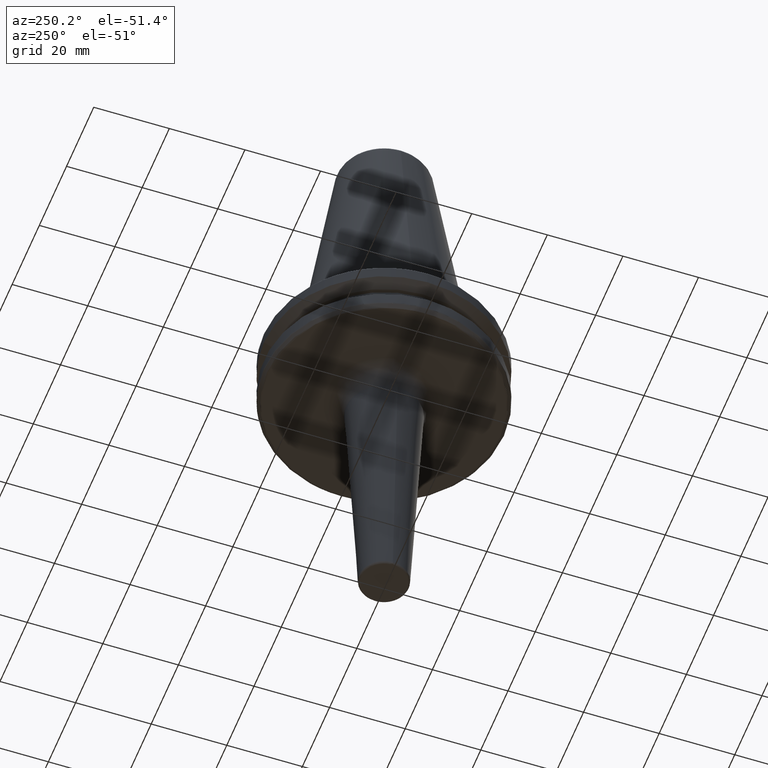
[diagram: clean part render]
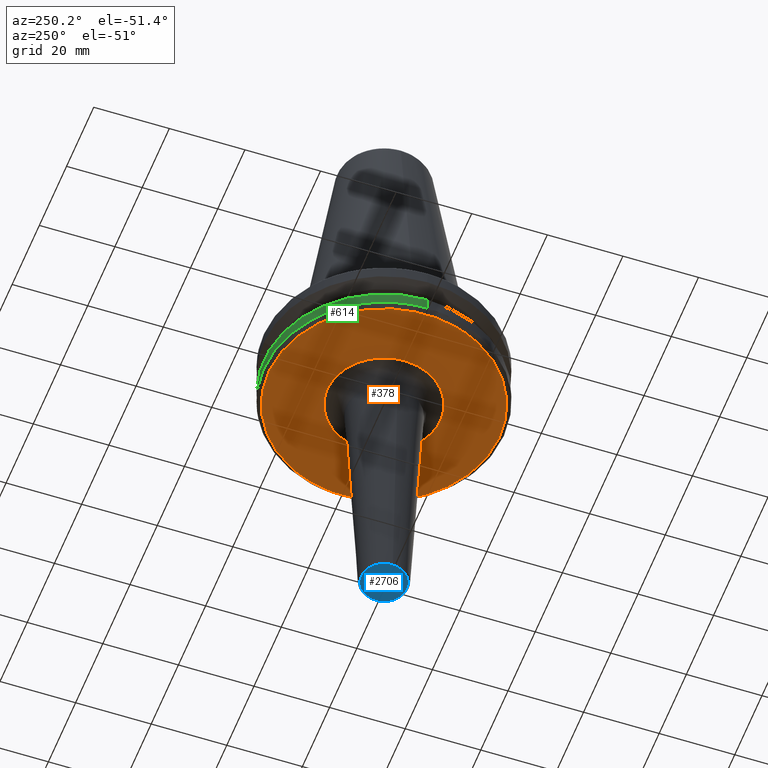
[diagram: same view with three faces highlighted in distinct colors, each labeled with its STEP entity id]
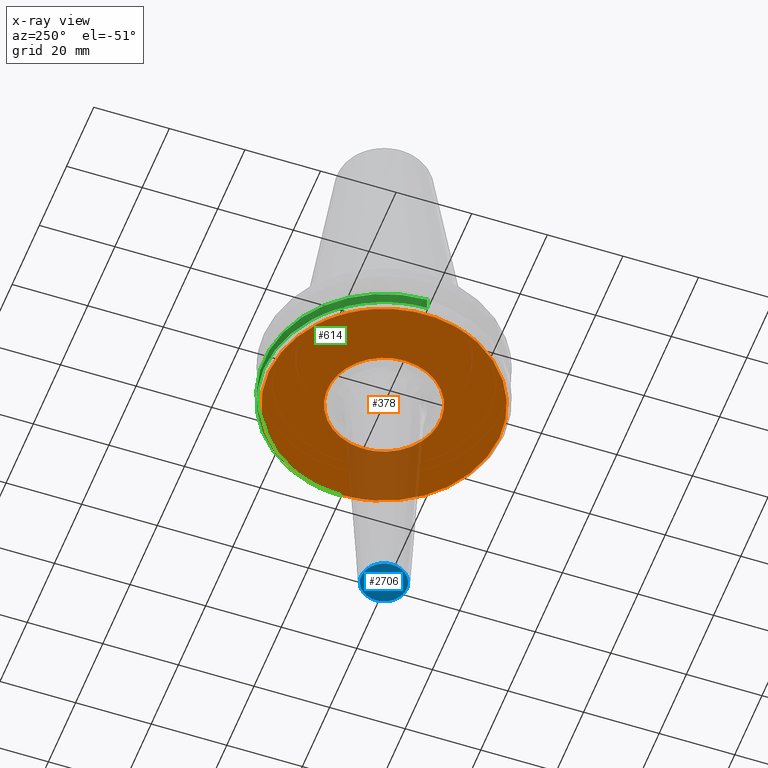
[diagram: x-ray of the same camera — body ghosted, the three highlighted faces saturated]
A machine part, auxiliary view with three faces highlighted in distinct colors.
The next image is the same camera in x-ray (body ghosted, the three faces saturated) — at least one of them is partly hidden behind the body in this view.
Their STEP definitions:

[orange] entity #378 — the highlighted planar face has unit normal (0, 0, -1).
#1 = CARTESIAN_POINT ( 'NONE',  ( 1.822834357084035700, 14.87724839754033100, -19.10000000000000500 ) ) ;
#5 = CARTESIAN_POINT ( 'NONE',  ( -23.78688261721307700, -19.25759772824421400, -19.10000000000000100 ) ) ;
#7 = CARTESIAN_POINT ( 'NONE',  ( -14.69964382547372100, 2.781895805044611400, -19.10000000000000900 ) ) ;
#28 = CARTESIAN_POINT ( 'NONE',  ( -13.55750927079556900, -27.41669403125807100, -19.10000000000000500 ) ) ;
#29 = CARTESIAN_POINT ( 'NONE',  ( 25.91506848432963000, -16.24456535706762800, -19.10000000000000500 ) ) ;
#34 = CARTESIAN_POINT ( 'NONE',  ( 7.111348432165401700, 13.17942268093030100, -19.10000000000000500 ) ) ;
#35 = CARTESIAN_POINT ( 'NONE',  ( 16.38572052405262600, 25.82468945861612000, -19.10000000000000100 ) ) ;
#48 = CARTESIAN_POINT ( 'NONE',  ( -1.822834357102871800, -14.87724839754033300, -19.10000000000000900 ) ) ;
#49 = CARTESIAN_POINT ( 'NONE',  ( -14.96053438474158200, 0.9152375320870886900, -19.09999999999999800 ) ) ;
#50 = CARTESIAN_POINT ( 'NONE',  ( 7.763553301169432400, 12.79846803407817600, -19.10000000000000900 ) ) ;
#52 = CARTESIAN_POINT ( 'NONE',  ( 24.51742230446014800, 18.28446092688399100, -19.10000000000000500 ) ) ;
#58 = CARTESIAN_POINT ( 'NONE',  ( 28.04473044301726900, -12.20290262157235800, -19.10000000000000100 ) ) ;
#60 = CARTESIAN_POINT ( 'NONE',  ( 5.110613125936054300, -14.06149893448535500, -19.10000000000000100 ) ) ;
#61 = CARTESIAN_POINT ( 'NONE',  ( 14.06149893448785600, 5.110613125930224300, -19.10000000000000100 ) ) ;
#64 = CARTESIAN_POINT ( 'NONE',  ( 28.22432639104233900, 11.78107541670503600, -19.10000000000000500 ) ) ;
#74 = CARTESIAN_POINT ( 'NONE',  ( -21.86129013470800300, -21.39082914621904400, -19.10000000000000100 ) ) ;
#75 = CARTESIAN_POINT ( 'NONE',  ( 28.18215722315982000, -11.88429583552771100, -19.10000000000000100 ) ) ;
#77 = CARTESIAN_POINT ( 'NONE',  ( 9.848615005509918400, -11.30872306776463700, -19.10000000000000100 ) ) ;
#79 = CARTESIAN_POINT ( 'NONE',  ( 8.239424959936259900, 12.48732913688384700, -19.10000000000001200 ) ) ;
#90 = CARTESIAN_POINT ( 'NONE',  ( -19.24823797460855300, -23.78338029378941300, -19.10000000000001200 ) ) ;
#93 = CARTESIAN_POINT ( 'NONE',  ( 13.86314464546744100, -5.624218442579086200, -19.10000000000000500 ) ) ;
#100 = CARTESIAN_POINT ( 'NONE',  ( -12.65743148084894200, 27.84302147053579500, -19.10000000000000500 ) ) ;
#106 = CARTESIAN_POINT ( 'NONE',  ( 14.96053438474158700, 1.832137054780770000E-015, -19.10000000000000500 ) ) ;
#110 = CARTESIAN_POINT ( 'NONE',  ( -3.335826507667983200, 30.41349938460541600, -19.10000000000000100 ) ) ;
#123 = CARTESIAN_POINT ( 'NONE',  ( 4.194626064597124500, 30.30646449917461300, -19.10000000000000500 ) ) ;
#133 = CARTESIAN_POINT ( 'NONE',  ( 13.06536007812701200, 27.65325169537482700, -19.10000000000000100 ) ) ;
#140 = CARTESIAN_POINT ( 'NONE',  ( -2.665998871118100000, 14.72110115962375700, -19.10000000000000900 ) ) ;
#151 = CARTESIAN_POINT ( 'NONE',  ( -5.976803100723656400, 13.72411570560160300, -19.10000000000000500 ) ) ;
#200 = CARTESIAN_POINT ( 'NONE',  ( -14.77906769165148200, -2.328123564916845900, -19.10000000000000100 ) ) ;
#207 = CARTESIAN_POINT ( 'NONE',  ( -13.72411570560614200, -5.976803100712901400, -19.10000000000000900 ) ) ;
#210 = CARTESIAN_POINT ( 'NONE',  ( -1.980707750522268800, -30.53825656188765000, -19.10000000000000900 ) ) ;
#212 = CARTESIAN_POINT ( 'NONE',  ( -12.27003892767387500, 8.561188725190943300, -19.10000000000000900 ) ) ;
#217 = CARTESIAN_POINT ( 'NONE',  ( -29.50593695866786700, 8.050011641192796200, -19.10000000000000500 ) ) ;
#218 = CARTESIAN_POINT ( 'NONE',  ( -8.401418717068052500, -12.37894442582497200, -19.10000000000000100 ) ) ;
#227 = CARTESIAN_POINT ( 'NONE',  ( -3.551708748808718200, -14.53645404171686200, -19.10000000000000100 ) ) ;
#231 = CARTESIAN_POINT ( 'NONE',  ( 0.0000000000000000000, 0.0000000000000000000, -19.10000000000000500 ) ) ;
#246 = CARTESIAN_POINT ( 'NONE',  ( 13.41107638299725100, 6.664192353299185400, -19.10000000000000900 ) ) ;
#254 = CARTESIAN_POINT ( 'NONE',  ( -24.67913322280990200, -18.07380832753302600, -19.10000000000000500 ) ) ;
#267 = CARTESIAN_POINT ( 'NONE',  ( -29.08795742227681900, -9.581875916355663500, -19.09999999999999800 ) ) ;
#271 = CARTESIAN_POINT ( 'NONE',  ( 4.369645814188728200, 14.32266670055102700, -19.10000000000000900 ) ) ;
#272 = CARTESIAN_POINT ( 'NONE',  ( 17.76311001678113400, 24.91123626348944600, -19.10000000000000100 ) ) ;
#282 = CARTESIAN_POINT ( 'NONE',  ( 27.56587331839861600, -13.27428387458943800, -19.09999999999999800 ) ) ;
#284 = CARTESIAN_POINT ( 'NONE',  ( 0.4573533666986031600, -14.96055059751908300, -19.10000000000000500 ) ) ;
#286 = CARTESIAN_POINT ( 'NONE',  ( 3.551708748771361400, 14.53645404172621100, -19.10000000000000500 ) ) ;
#288 = CARTESIAN_POINT ( 'NONE',  ( 25.07711885281372900, 17.51959354323408400, -19.10000000000000100 ) ) ;
#296 = CARTESIAN_POINT ( 'NONE',  ( -14.12359010196327200, -27.12814019750088700, -19.10000000000000900 ) ) ;
#299 = CARTESIAN_POINT ( 'NONE',  ( 5.393945895505792600, -13.95434931609664500, -19.10000000000000500 ) ) ;
#301 = CARTESIAN_POINT ( 'NONE',  ( 5.711969985415119100, 13.82744230463815100, -19.10000000000000500 ) ) ;
#303 = CARTESIAN_POINT ( 'NONE',  ( 28.31382758094056800, 11.56430445685524000, -19.10000000000000900 ) ) ;
#311 = CARTESIAN_POINT ( 'NONE',  ( -27.86171205598864400, -12.61459124129725500, -19.10000000000000100 ) ) ;
#312 = CARTESIAN_POINT ( 'NONE',  ( 27.94464134489557200, -12.42979159005786200, -19.10000000000001200 ) ) ;
#314 = CARTESIAN_POINT ( 'NONE',  ( 11.46041618470569300, -9.640902905948241400, -19.10000000000000900 ) ) ;
#315 = CARTESIAN_POINT ( 'NONE',  ( 13.72411570561011900, 5.976803100707294400, -19.10000000000000500 ) ) ;
#319 = CARTESIAN_POINT ( 'NONE',  ( -18.50002675305176300, 24.35471234419719300, -19.10000000000000500 ) ) ;
#327 = CARTESIAN_POINT ( 'NONE',  ( 13.89897069281874000, -5.535078170416923600, -19.10000000000000100 ) ) ;
#330 = CARTESIAN_POINT ( 'NONE',  ( -12.30602042319770800, 27.99943186576027500, -19.10000000000001600 ) ) ;
#340 = CARTESIAN_POINT ( 'NONE',  ( -1.754889633223906300, 30.53434994063401200, -19.10000000000000500 ) ) ;
#351 = CARTESIAN_POINT ( 'NONE',  ( 5.798126224598956200, 30.03039269424756300, -19.10000000000000100 ) ) ;
#377 = CARTESIAN_POINT ( 'NONE',  ( -8.132539203948370600, 12.55720869915062300, -19.10000000000001200 ) ) ;
#378 = ADVANCED_FACE ( 'NONE', ( #1774, #2958 ), #2896, .T. ) ;
#390 = DIRECTION ( 'NONE',  ( -0.0000000000000000000, -0.0000000000000000000, 1.000000000000000000 ) ) ;
#401 = B_SPLINE_CURVE_WITH_KNOTS ( 'NONE', 3,
 ( #217, #924, #2088, #680, #2313, #933 ),
 .UNSPECIFIED., .F., .F.,
 ( 4, 2, 4 ),
 ( 0.0000000000000000000, 0.5000000000000000000, 1.000000000000000000 ),
 .UNSPECIFIED. ) ;
#413 = CARTESIAN_POINT ( 'NONE',  ( -4.391022105728267500, -30.26774995785368500, -19.10000000000000500 ) ) ;
#420 = AXIS2_PLACEMENT_3D ( 'NONE', #2567, #1652, #952 ) ;
#422 = CARTESIAN_POINT ( 'NONE',  ( 4.938364931540699700, -30.18303432026915800, -19.10000000000000500 ) ) ;
#424 = EDGE_CURVE ( 'NONE', #619, #959, #1039, .T. ) ;
#428 = CARTESIAN_POINT ( 'NONE',  ( 4.783350766199017600, -30.20798338819395200, -19.10000000000000500 ) ) ;
#435 = CARTESIAN_POINT ( 'NONE',  ( -14.73118064764160600, -2.609732947942208000, -19.10000000000000500 ) ) ;
#444 = CARTESIAN_POINT ( 'NONE',  ( -12.98633215065384100, -7.435565127019459400, -19.10000000000000100 ) ) ;
#452 = CARTESIAN_POINT ( 'NONE',  ( -8.239424959934053700, -12.48732913688525900, -19.10000000000000500 ) ) ;
#458 = CARTESIAN_POINT ( 'NONE',  ( -2.930704362195605000, -14.67089392985189500, -19.10000000000000500 ) ) ;
#463 = DIRECTION ( 'NONE',  ( 1.000000000000000000, 0.0000000000000000000, 0.0000000000000000000 ) ) ;
#472 = CARTESIAN_POINT ( 'NONE',  ( 13.98705040986441800, 5.309103746305674500, -19.10000000000000500 ) ) ;
#481 = CARTESIAN_POINT ( 'NONE',  ( -14.70557042885873300, 2.750377173285966800, -19.10000000000000100 ) ) ;
#483 = CARTESIAN_POINT ( 'NONE',  ( 14.74605896522023200, 2.525296032536365100, -19.10000000000000900 ) ) ;
#494 = CARTESIAN_POINT ( 'NONE',  ( 29.50593695866786700, -8.050011641192796200, -19.10000000000000500 ) ) ;
#495 = CARTESIAN_POINT ( 'NONE',  ( 6.319451434692907400, 13.56454964079558500, -19.10000000000000900 ) ) ;
#504 = CARTESIAN_POINT ( 'NONE',  ( 27.92527061286967100, -12.47325821572505000, -19.10000000000000900 ) ) ;
#507 = CARTESIAN_POINT ( 'NONE',  ( 12.98633215065907000, 7.435565127012104400, -19.10000000000000500 ) ) ;
#508 = CARTESIAN_POINT ( 'NONE',  ( 19.01361294775681200, 23.95638265829615000, -19.09999999999999800 ) ) ;
#513 = AXIS2_PLACEMENT_3D ( 'NONE', #1957, #2170, #1455 ) ;
#518 = CARTESIAN_POINT ( 'NONE',  ( 28.44748858146412100, -11.24368615697392600, -19.10000000000000100 ) ) ;
#521 = CARTESIAN_POINT ( 'NONE',  ( 1.933051623074510500, -14.83827703210904900, -19.10000000000000900 ) ) ;
#523 = CARTESIAN_POINT ( 'NONE',  ( 12.75907711216751600, 7.813606175290822800, -19.10000000000000500 ) ) ;
#525 = CARTESIAN_POINT ( 'NONE',  ( 26.18838791784893500, 15.80329267786272900, -19.10000000000000500 ) ) ;
#533 = CARTESIAN_POINT ( 'NONE',  ( -27.60161413460691900, -13.17678050942531300, -19.10000000000001200 ) ) ;
#534 = CARTESIAN_POINT ( 'NONE',  ( 14.31298725537405200, -27.02868588326913700, -19.10000000000000500 ) ) ;
#536 = CARTESIAN_POINT ( 'NONE',  ( 5.477524212900336300, -13.92175573251021000, -19.10000000000000500 ) ) ;
#538 = CARTESIAN_POINT ( 'NONE',  ( 14.62253607668872800, 3.199184109780963700, -19.10000000000000100 ) ) ;
#540 = CARTESIAN_POINT ( 'NONE',  ( 29.18634062978594200, 9.221269143563914000, -19.10000000000000500 ) ) ;
#551 = CARTESIAN_POINT ( 'NONE',  ( 12.27003892767507600, -8.561188725189095900, -19.10000000000000100 ) ) ;
#561 = CARTESIAN_POINT ( 'NONE',  ( 14.32266670053905600, -4.369645814230485900, -19.10000000000000500 ) ) ;
#568 = CARTESIAN_POINT ( 'NONE',  ( -11.58667819376902100, 28.31160413811162600, -19.10000000000000900 ) ) ;
#579 = CARTESIAN_POINT ( 'NONE',  ( -1.277990131494122400, 30.55800543620354400, -19.10000000000000500 ) ) ;
#587 = CARTESIAN_POINT ( 'NONE',  ( 6.178357567779041700, 29.95386665788899800, -19.10000000000000900 ) ) ;
#596 = VERTEX_POINT ( 'NONE', #1355 ) ;
#602 = CARTESIAN_POINT ( 'NONE',  ( -2.609711896416873500, 14.73118454250807500, -19.10000000000000500 ) ) ;
#603 = EDGE_CURVE ( 'NONE', #619, #1894, #2691, .T. ) ;
#609 = EDGE_CURVE ( 'NONE', #696, #922, #2048, .T. ) ;
#616 = CARTESIAN_POINT ( 'NONE',  ( -8.080540953688595700, 12.59072804468383000, -19.10000000000001200 ) ) ;
#619 = VERTEX_POINT ( 'NONE', #494 ) ;
#622 = CARTESIAN_POINT ( 'NONE',  ( -9.848615005513073200, 11.30872306775983000, -19.10000000000000900 ) ) ;
#642 = EDGE_CURVE ( 'NONE', #1894, #2237, #1939, .T. ) ;
#650 = CARTESIAN_POINT ( 'NONE',  ( 9.741308101238560700, -28.99155239477984500, -19.10000000000000900 ) ) ;
#662 = CARTESIAN_POINT ( 'NONE',  ( -14.96053438474158700, 0.0000000000000000000, -19.10000000000000500 ) ) ;
#669 = CARTESIAN_POINT ( 'NONE',  ( -14.71628863103540900, -2.692457026900050700, -19.10000000000000500 ) ) ;
#673 = CARTESIAN_POINT ( 'NONE',  ( -13.56454964079441600, 6.319451434693032600, -19.10000000000000500 ) ) ;
#674 = CARTESIAN_POINT ( 'NONE',  ( -12.65849289802877900, -7.973985480574773600, -19.10000000000000500 ) ) ;
#677 = CARTESIAN_POINT ( 'NONE',  ( -13.86314464546857100, 5.624218442577356000, -19.10000000000000500 ) ) ;
#680 = CARTESIAN_POINT ( 'NONE',  ( -26.56612284950205100, 15.28016086959555500, -19.10000000000000500 ) ) ;
#681 = CARTESIAN_POINT ( 'NONE',  ( -7.111348432196256100, -13.17942268091052000, -19.10000000000000500 ) ) ;
#695 = CARTESIAN_POINT ( 'NONE',  ( -2.781895805046198200, -14.69964382547349000, -19.10000000000000100 ) ) ;
#696 = VERTEX_POINT ( 'NONE', #906 ) ;
#717 = ORIENTED_EDGE ( 'NONE', *, *, #1050, .F. ) ;
#723 = ORIENTED_EDGE ( 'NONE', *, *, #424, .T. ) ;
#737 = CARTESIAN_POINT ( 'NONE',  ( 14.20297987373668700, 4.711529462861540700, -19.10000000000000900 ) ) ;
#747 = CIRCLE ( 'NONE', #2996, 30.58435880041008700 ) ;
#748 = CARTESIAN_POINT ( 'NONE',  ( 14.40947314747780600, -26.97737969063206300, -19.10000000000000500 ) ) ;
#752 = CARTESIAN_POINT ( 'NONE',  ( 8.928460285654503900, 12.00917120495070000, -19.10000000000000500 ) ) ;
#753 = CARTESIAN_POINT ( 'NONE',  ( 19.38055795302008400, 23.66050113822976500, -19.10000000000001200 ) ) ;
#767 = CARTESIAN_POINT ( 'NONE',  ( 2.525260090910677500, -14.74606561499225100, -19.10000000000000900 ) ) ;
#768 = CARTESIAN_POINT ( 'NONE',  ( 2.750371694404443200, 14.70557144293955300, -19.10000000000000100 ) ) ;
#770 = CARTESIAN_POINT ( 'NONE',  ( 26.58403738893923300, 15.12268211273652300, -19.10000000000000100 ) ) ;
#779 = CARTESIAN_POINT ( 'NONE',  ( 22.45416143053250800, -20.76589565598027000, -19.10000000000000500 ) ) ;
#781 = CARTESIAN_POINT ( 'NONE',  ( 6.664192353297434800, -13.41107638299839000, -19.10000000000000500 ) ) ;
#783 = CARTESIAN_POINT ( 'NONE',  ( 8.401418717067755900, 12.37894442582527300, -19.10000000000000500 ) ) ;
#796 = CARTESIAN_POINT ( 'NONE',  ( -11.53725264662773900, -28.34718016712044900, -19.10000000000000900 ) ) ;
#798 = CARTESIAN_POINT ( 'NONE',  ( 12.45090476805093400, -8.294379175922422600, -19.10000000000000900 ) ) ;
#810 = CARTESIAN_POINT ( 'NONE',  ( 14.62854735930698200, -3.138425023209853800, -19.10000000000000900 ) ) ;
#815 = CARTESIAN_POINT ( 'NONE',  ( -9.668279344121133400, 29.01896080072954100, -19.10000000000000500 ) ) ;
#827 = CARTESIAN_POINT ( 'NONE',  ( 0.4531822849060669900, 30.59235866177671400, -19.10000000000000500 ) ) ;
#836 = CARTESIAN_POINT ( 'NONE',  ( 7.517538265328743900, 29.67087649393396000, -19.10000000000000500 ) ) ;
#851 = CARTESIAN_POINT ( 'NONE',  ( -9.050728366960557400, 11.95696294642704100, -19.10000000000000500 ) ) ;
#862 = CARTESIAN_POINT ( 'NONE',  ( -3.904952447482451700, 14.45627731223391200, -19.10000000000000500 ) ) ;
#863 = ORIENTED_EDGE ( 'NONE', *, *, #1388, .T. ) ;
#878 = EDGE_CURVE ( 'NONE', #922, #696, #2930, .T. ) ;
#890 = ORIENTED_EDGE ( 'NONE', *, *, #1112, .F. ) ;
#906 = CARTESIAN_POINT ( 'NONE',  ( 14.96053438474158700, 1.832137054780770000E-015, -19.10000000000000500 ) ) ;
#909 = CARTESIAN_POINT ( 'NONE',  ( 9.640580262597561400, -29.02520083562890100, -19.10000000000000500 ) ) ;
#913 = CARTESIAN_POINT ( 'NONE',  ( -14.45627731223578400, -3.904952447476566200, -19.10000000000000900 ) ) ;
#921 = CARTESIAN_POINT ( 'NONE',  ( -12.79846803407728800, 7.763553301169532800, -19.10000000000000500 ) ) ;
#922 = VERTEX_POINT ( 'NONE', #2885 ) ;
#924 = CARTESIAN_POINT ( 'NONE',  ( -28.99013299704189700, 9.940434568560412700, -19.10000000000000100 ) ) ;
#925 = CARTESIAN_POINT ( 'NONE',  ( -12.55720869914989100, -8.132539203948995900, -19.10000000000000500 ) ) ;
#929 = CARTESIAN_POINT ( 'NONE',  ( -12.45090476805056000, 8.294379175923008800, -19.10000000000000100 ) ) ;
#933 = CARTESIAN_POINT ( 'NONE',  ( -24.35471234555335200, 18.50002675126641400, -19.10000000000000500 ) ) ;
#934 = CARTESIAN_POINT ( 'NONE',  ( -5.915755106728197700, -13.74228308868734800, -19.10000000000000500 ) ) ;
#948 = CARTESIAN_POINT ( 'NONE',  ( 14.45627731224213800, 3.904952447453041900, -19.10000000000000500 ) ) ;
#952 = DIRECTION ( 'NONE',  ( 1.000000000000000000, 0.0000000000000000000, 0.0000000000000000000 ) ) ;
#957 = CARTESIAN_POINT ( 'NONE',  ( -15.74490649238654400, -26.27680638947031300, -19.10000000000000900 ) ) ;
#959 = VERTEX_POINT ( 'NONE', #2437 ) ;
#960 = CARTESIAN_POINT ( 'NONE',  ( 9.640902905952499300, 11.46041618470144400, -19.10000000000000100 ) ) ;
#971 = CARTESIAN_POINT ( 'NONE',  ( -22.08505440506140600, -21.15804733461203200, -19.10000000000000100 ) ) ;
#975 = CARTESIAN_POINT ( 'NONE',  ( 14.58823882257053300, 26.89349445919003000, -19.10000000000000500 ) ) ;
#980 = CARTESIAN_POINT ( 'NONE',  ( 29.50593695866786700, -8.050011641192796200, -19.10000000000000500 ) ) ;
#981 = CARTESIAN_POINT ( 'NONE',  ( -25.97824210456839800, -16.16214345845010000, -19.10000000000000100 ) ) ;
#983 = CARTESIAN_POINT ( 'NONE',  ( 19.93308098988654800, -23.26029377377305400, -19.10000000000000900 ) ) ;
#988 = CARTESIAN_POINT ( 'NONE',  ( 5.535078170418423800, 13.89897069281830600, -19.10000000000000500 ) ) ;
#989 = CARTESIAN_POINT ( 'NONE',  ( 21.40627702113345900, 21.88112117654264600, -19.10000000000000500 ) ) ;
#996 = AXIS2_PLACEMENT_3D ( 'NONE', #2682, #1205, #1239 ) ;
#999 = CARTESIAN_POINT ( 'NONE',  ( -8.158427338735364700, -29.48125659895528400, -19.10000000000000500 ) ) ;
#1000 = CARTESIAN_POINT ( 'NONE',  ( 17.87849741863398000, -24.82948193938068100, -19.10000000000000100 ) ) ;
#1003 = CARTESIAN_POINT ( 'NONE',  ( 2.665998871118263400, -14.72110115962375900, -19.10000000000000500 ) ) ;
#1005 = CARTESIAN_POINT ( 'NONE',  ( 13.95434931609743100, 5.393945895503963000, -19.10000000000000500 ) ) ;
#1007 = CARTESIAN_POINT ( 'NONE',  ( 26.70070361132738800, 14.91571867381870400, -19.10000000000000100 ) ) ;
#1017 = CARTESIAN_POINT ( 'NONE',  ( 7.813606175290055400, -12.75907711216800800, -19.10000000000000100 ) ) ;
#1018 = CARTESIAN_POINT ( 'NONE',  ( 12.59072804468589600, 8.080540953684632700, -19.10000000000000900 ) ) ;
#1029 = CARTESIAN_POINT ( 'NONE',  ( -26.61736808516047900, -15.10355864978086500, -19.10000000000000500 ) ) ;
#1031 = CARTESIAN_POINT ( 'NONE',  ( 12.79846803407255100, -7.763553301176772300, -19.10000000000000500 ) ) ;
#1034 = CARTESIAN_POINT ( 'NONE',  ( -17.51886799372202900, 25.09995254383747500, -19.10000000000000500 ) ) ;
#1039 = B_SPLINE_CURVE_WITH_KNOTS ( 'NONE', 3,
 ( #980, #1447, #2813, #518, #75, #58, #1255, #312, #504, #282, #1940, #1481, #29, #2830, #1726, #1223, #1241, #2152, #2585, #2382, #2166, #2370, #1907, #779, #2137, #983, #1000, #1498, #1683, #1713, #1924, #748, #534, #1145, #2079, #2524, #2721, #1851, #650, #909, #2962, #2492, #2063, #1116, #2980, #2498, #422, #2515, #428, #1382, #1607, #2485, #210, #1836, #2507, #413, #1127, #1712, #2571, #2357, #2116, #999, #2336, #2369, #2180, #2584, #1882, #1183, #796, #1938, #28, #2127, #2560, #296, #957, #1725, #90, #2785, #1449, #74, #971, #1480, #1426, #2817, #5, #254, #1511, #1681, #1208, #2601, #1222, #981, #1029, #2549, #533, #2855, #2631, #311, #2800, #1895, #267, #1670 ),
 .UNSPECIFIED., .F., .F.,
 ( 4, 1, 1, 1, 1, 2, 2, 1, 1, 1, 1, 2, 2, 1, 1, 1, 2, 2, 2, 1, 1, 1, 2, 2, 1, 1, 1, 1, 2, 2, 1, 1, 1, 1, 2, 2, 2, 1, 1, 1, 1, 2, 2, 1, 1, 1, 1, 2, 2, 1, 1, 1, 2, 2, 2, 1, 1, 1, 2, 2, 1, 1, 1, 1, 2, 2, 1, 1, 1, 1, 2, 2, 4 ),
 ( 0.0000000000000000000, 0.03125000000000043000, 0.04687500000000063800, 0.05468750000000073600, 0.05859375000000075600, 0.06054687500000074200, 0.06250000000000072200, 0.09375000000000025000, 0.1093750000000000400, 0.1171874999999999200, 0.1210937499999997900, 0.1230468749999997600, 0.1249999999999997400, 0.1562499999999992200, 0.1718749999999989700, 0.1796874999999988600, 0.1835937499999988100, 0.1874999999999987500, 0.2499999999999989500, 0.2812499999999990000, 0.2968749999999991100, 0.3046874999999991700, 0.3085937499999991700, 0.3124999999999991100, 0.3437499999999990600, 0.3593749999999990600, 0.3671874999999990600, 0.3710937499999991100, 0.3730468749999991700, 0.3749999999999991700, 0.4062499999999991100, 0.4218749999999990600, 0.4296874999999990600, 0.4335937499999990600, 0.4355468749999990600, 0.4374999999999990600, 0.4999999999999995000, 0.5312499999999997800, 0.5468749999999998900, 0.5546875000000000000, 0.5585937500000000000, 0.5605468750000001100, 0.5625000000000001100, 0.5937500000000005600, 0.6093750000000007800, 0.6171875000000008900, 0.6210937500000008900, 0.6230468750000008900, 0.6250000000000008900, 0.6562500000000010000, 0.6718750000000010000, 0.6796875000000010000, 0.6835937500000011100, 0.6875000000000011100, 0.7500000000000013300, 0.7812500000000013300, 0.7968750000000013300, 0.8046875000000013300, 0.8085937500000012200, 0.8125000000000012200, 0.8437500000000014400, 0.8593750000000015500, 0.8671875000000015500, 0.8710937500000015500, 0.8730468750000015500, 0.8750000000000015500, 0.9062500000000016700, 0.9218750000000017800, 0.9296875000000017800, 0.9335937500000017800, 0.9355468750000017800, 0.9375000000000017800, 1.000000000000000000 ),
 .UNSPECIFIED. ) ;
#1043 = CARTESIAN_POINT ( 'NONE',  ( 14.68824958403206400, -2.841450050711145100, -19.10000000000000500 ) ) ;
#1047 = CARTESIAN_POINT ( 'NONE',  ( -8.917516567687371800, 29.25582015750815400, -19.10000000000000500 ) ) ;
#1050 = EDGE_CURVE ( 'NONE', #1784, #1340, #747, .T. ) ;
#1061 = CARTESIAN_POINT ( 'NONE',  ( 2.103333420339649000, 30.51262227300270200, -19.10000000000000100 ) ) ;
#1068 = CARTESIAN_POINT ( 'NONE',  ( 10.41034370100355100, 28.76445469558826700, -19.10000000000000500 ) ) ;
#1081 = CARTESIAN_POINT ( 'NONE',  ( -3.199184109797764500, 14.62253607668403000, -19.10000000000000500 ) ) ;
#1112 = EDGE_CURVE ( 'NONE', #596, #959, #1231, .T. ) ;
#1116 = CARTESIAN_POINT ( 'NONE',  ( 6.156651080568798800, -29.96331126530298800, -19.10000000000000500 ) ) ;
#1127 = CARTESIAN_POINT ( 'NONE',  ( -4.538187366338957100, -30.24578697828068400, -19.10000000000000100 ) ) ;
#1139 = CARTESIAN_POINT ( 'NONE',  ( -14.06149893448506400, -5.110613125940515600, -19.10000000000000500 ) ) ;
#1145 = CARTESIAN_POINT ( 'NONE',  ( 13.46675684607612000, -27.47306857769193300, -19.10000000000000900 ) ) ;
#1146 = CARTESIAN_POINT ( 'NONE',  ( -12.48732913688395700, 8.239424959936240400, -19.10000000000000500 ) ) ;
#1149 = CARTESIAN_POINT ( 'NONE',  ( -11.30872306775847500, -9.848615005516089500, -19.10000000000000500 ) ) ;
#1154 = CARTESIAN_POINT ( 'NONE',  ( -14.08867634067578400, 5.055939780432572300, -19.10000000000000500 ) ) ;
#1158 = CARTESIAN_POINT ( 'NONE',  ( -5.624218442581563300, -13.86314464546607500, -19.10000000000000500 ) ) ;
#1174 = ORIENTED_EDGE ( 'NONE', *, *, #642, .F. ) ;
#1183 = CARTESIAN_POINT ( 'NONE',  ( -10.34692081642918300, -28.79347578717342800, -19.10000000000000500 ) ) ;
#1185 = CARTESIAN_POINT ( 'NONE',  ( 14.83825575283858100, 1.933166636276697300, -19.10000000000000500 ) ) ;
#1205 = DIRECTION ( 'NONE',  ( 0.0000000000000000000, 0.0000000000000000000, -1.000000000000000000 ) ) ;
#1208 = CARTESIAN_POINT ( 'NONE',  ( -25.40531514043783900, -17.02859819238312900, -19.10000000000000500 ) ) ;
#1211 = CARTESIAN_POINT ( 'NONE',  ( -14.67089392985263200, 2.930704362190305700, -19.10000000000000500 ) ) ;
#1212 = CARTESIAN_POINT ( 'NONE',  ( 14.96053438474158700, 0.4574409958050390500, -19.10000000000000900 ) ) ;
#1213 = CARTESIAN_POINT ( 'NONE',  ( 15.99211500375794700, 26.07096171698068000, -19.10000000000000900 ) ) ;
#1222 = CARTESIAN_POINT ( 'NONE',  ( -25.49448276515892400, -16.89479980230323600, -19.10000000000000900 ) ) ;
#1223 = CARTESIAN_POINT ( 'NONE',  ( 25.57975895856417400, -16.76540627108043000, -19.10000000000000100 ) ) ;
#1229 = CARTESIAN_POINT ( 'NONE',  ( -0.4573533666972686200, 14.96055059751908400, -19.10000000000000100 ) ) ;
#1230 = CARTESIAN_POINT ( 'NONE',  ( 23.34168654117829400, 19.78065602349450500, -19.10000000000000500 ) ) ;
#1231 = CIRCLE ( 'NONE', #1846, 30.58435880041008700 ) ;
#1239 = DIRECTION ( 'NONE',  ( -1.000000000000000000, 0.0000000000000000000, -0.0000000000000000000 ) ) ;
#1241 = CARTESIAN_POINT ( 'NONE',  ( 25.55219655712748800, -16.80738867178014600, -19.10000000000000900 ) ) ;
#1244 = CARTESIAN_POINT ( 'NONE',  ( 3.199184109788572300, -14.62253607668546700, -19.10000000000000500 ) ) ;
#1246 = CARTESIAN_POINT ( 'NONE',  ( 14.92931430851103000, 1.140804805454370000, -19.10000000000000100 ) ) ;
#1248 = CARTESIAN_POINT ( 'NONE',  ( 27.46611760510352000, 13.47920850658973700, -19.10000000000000900 ) ) ;
#1255 = CARTESIAN_POINT ( 'NONE',  ( 27.98481301560113700, -12.33908451847029400, -19.10000000000000500 ) ) ;
#1257 = CARTESIAN_POINT ( 'NONE',  ( 8.080540953684392800, -12.59072804468604700, -19.10000000000000100 ) ) ;
#1258 = CARTESIAN_POINT ( 'NONE',  ( 5.565625177956405900, 13.88676965802214800, -19.10000000000000500 ) ) ;
#1268 = CARTESIAN_POINT ( 'NONE',  ( 13.56454964078820800, -6.319451434702531700, -19.10000000000000500 ) ) ;
#1281 = CARTESIAN_POINT ( 'NONE',  ( 14.70557042885873500, -2.750377173285976500, -19.10000000000000500 ) ) ;
#1287 = CARTESIAN_POINT ( 'NONE',  ( -7.396785857642844200, 29.70357443817780300, -19.10000000000000100 ) ) ;
#1297 = CARTESIAN_POINT ( 'NONE',  ( 2.495993614183678500, 30.48239565653807800, -19.10000000000000500 ) ) ;
#1312 = CARTESIAN_POINT ( 'NONE',  ( 12.23810548582505600, 28.03197362945626700, -19.10000000000000500 ) ) ;
#1317 = CARTESIAN_POINT ( 'NONE',  ( -7.973985480579727900, 12.65849289802668800, -19.10000000000000500 ) ) ;
#1325 = CARTESIAN_POINT ( 'NONE',  ( -7.435565127033572500, 12.98633215064789300, -19.10000000000000500 ) ) ;
#1340 = VERTEX_POINT ( 'NONE', #2159 ) ;
#1355 = CARTESIAN_POINT ( 'NONE',  ( -29.50593695866786700, 8.050011641192796200, -19.10000000000000500 ) ) ;
#1382 = CARTESIAN_POINT ( 'NONE',  ( 3.166151006705770800, -30.46140382597060600, -19.10000000000001200 ) ) ;
#1387 = CARTESIAN_POINT ( 'NONE',  ( -13.95434931609656300, -5.393945895507192400, -19.10000000000000900 ) ) ;
#1388 = EDGE_CURVE ( 'NONE', #1784, #2237, #2745, .T. ) ;
#1394 = CARTESIAN_POINT ( 'NONE',  ( -13.74228308869532700, 5.915755106714783600, -19.10000000000000500 ) ) ;
#1398 = CARTESIAN_POINT ( 'NONE',  ( -9.640902905953629100, -11.46041618470029600, -19.10000000000000500 ) ) ;
#1406 = CARTESIAN_POINT ( 'NONE',  ( -5.535078170416636700, -13.89897069281875400, -19.09999999999999800 ) ) ;
#1421 = CARTESIAN_POINT ( 'NONE',  ( 8.561188725190961100, 12.27003892767321600, -19.10000000000000500 ) ) ;
#1426 = CARTESIAN_POINT ( 'NONE',  ( -22.30836331049845400, -20.92243750512144400, -19.10000000000000500 ) ) ;
#1430 = CARTESIAN_POINT ( 'NONE',  ( 12.65849289803061600, 7.973985480572189000, -19.10000000000000500 ) ) ;
#1447 = CARTESIAN_POINT ( 'NONE',  ( 29.29697359829781100, -8.815762972852718700, -19.10000000000000500 ) ) ;
#1449 = CARTESIAN_POINT ( 'NONE',  ( -21.33119217829327100, -21.92514203399821300, -19.10000000000000500 ) ) ;
#1453 = CARTESIAN_POINT ( 'NONE',  ( -14.68824958403242700, 2.841450050709148900, -19.10000000000000500 ) ) ;
#1455 = DIRECTION ( 'NONE',  ( 1.000000000000000000, 0.0000000000000000000, 0.0000000000000000000 ) ) ;
#1456 = CARTESIAN_POINT ( 'NONE',  ( 16.32111855271079600, 25.86556262578678700, -19.10000000000000100 ) ) ;
#1469 = CARTESIAN_POINT ( 'NONE',  ( 8.294379175923015900, 12.45090476805035400, -19.10000000000000500 ) ) ;
#1471 = CARTESIAN_POINT ( 'NONE',  ( 24.32635705293869000, 18.53792103917297500, -19.10000000000000100 ) ) ;
#1480 = CARTESIAN_POINT ( 'NONE',  ( -22.23347045905034500, -21.00201711043238700, -19.10000000000000100 ) ) ;
#1481 = CARTESIAN_POINT ( 'NONE',  ( 26.29437709911257700, -15.63042418696883700, -19.10000000000000500 ) ) ;
#1483 = CARTESIAN_POINT ( 'NONE',  ( 4.711529462871536300, -14.20297987373240300, -19.10000000000000100 ) ) ;
#1485 = CARTESIAN_POINT ( 'NONE',  ( -1.140651454515786900, 14.92934268087165800, -19.10000000000000900 ) ) ;
#1487 = CARTESIAN_POINT ( 'NONE',  ( 28.13442549670037700, 11.99570152419388200, -19.10000000000000500 ) ) ;
#1498 = CARTESIAN_POINT ( 'NONE',  ( 16.82180190648200500, -25.56823429586928900, -19.10000000000000500 ) ) ;
#1501 = CARTESIAN_POINT ( 'NONE',  ( 9.050728366952482100, -11.95696294643678400, -19.10000000000000900 ) ) ;
#1502 = CARTESIAN_POINT ( 'NONE',  ( 14.71628863103518200, 2.692457026900896700, -19.10000000000000500 ) ) ;
#1511 = CARTESIAN_POINT ( 'NONE',  ( -25.10709178878912300, -17.46754491848619800, -19.10000000000000500 ) ) ;
#1513 = CARTESIAN_POINT ( 'NONE',  ( 13.82744230463585600, -5.711969985418119400, -19.10000000000000500 ) ) ;
#1516 = CARTESIAN_POINT ( 'NONE',  ( 29.50593695887979000, 8.050011640416025600, -19.10000000000000500 ) ) ;
#1520 = CARTESIAN_POINT ( 'NONE',  ( -13.14593330072873200, 27.61811721527876200, -19.10000000000000900 ) ) ;
#1525 = CARTESIAN_POINT ( 'NONE',  ( 14.96053438474158700, -0.9152375320867005600, -19.10000000000000500 ) ) ;
#1530 = CARTESIAN_POINT ( 'NONE',  ( -4.279122215993030700, 30.29015284362106900, -19.10000000000000500 ) ) ;
#1539 = CARTESIAN_POINT ( 'NONE',  ( 3.271282400886674800, 30.41520625110938200, -19.10000000000000500 ) ) ;
#1548 = CARTESIAN_POINT ( 'NONE',  ( 12.92802695592982500, 27.71772311958008600, -19.10000000000000900 ) ) ;
#1554 = CARTESIAN_POINT ( 'NONE',  ( -5.309103746312568500, 13.98705040986247600, -19.10000000000000100 ) ) ;
#1563 = CARTESIAN_POINT ( 'NONE',  ( -2.692457026899842500, 14.71628863103547100, -19.10000000000000500 ) ) ;
#1570 = CARTESIAN_POINT ( 'NONE',  ( -2.750371694403849400, -14.70557144293955100, -19.10000000000000100 ) ) ;
#1572 = CARTESIAN_POINT ( 'NONE',  ( -5.450457270630658400, 13.93237201287128700, -19.10000000000000100 ) ) ;
#1607 = CARTESIAN_POINT ( 'NONE',  ( 1.587331041613742700, -30.58428776442982800, -19.10000000000000500 ) ) ;
#1616 = CARTESIAN_POINT ( 'NONE',  ( -14.83825575283857900, -1.933166636284343400, -19.10000000000000500 ) ) ;
#1622 = CARTESIAN_POINT ( 'NONE',  ( -13.92175573251049200, -5.477524212899922400, -19.10000000000000100 ) ) ;
#1630 = CARTESIAN_POINT ( 'NONE',  ( -13.88676965802204500, 5.565625177956419200, -19.10000000000000100 ) ) ;
#1635 = CARTESIAN_POINT ( 'NONE',  ( -8.561188725191460200, -12.27003892767272000, -19.10000000000000900 ) ) ;
#1642 = CARTESIAN_POINT ( 'NONE',  ( -4.369645814238539000, -14.32266670053856400, -19.10000000000000500 ) ) ;
#1652 = DIRECTION ( 'NONE',  ( -0.0000000000000000000, -0.0000000000000000000, 1.000000000000000000 ) ) ;
#1661 = CARTESIAN_POINT ( 'NONE',  ( -14.87728084812677700, 1.822659032875217900, -19.10000000000000500 ) ) ;
#1662 = CARTESIAN_POINT ( 'NONE',  ( 2.781895805042702300, 14.69964382547436600, -19.10000000000000500 ) ) ;
#1670 = CARTESIAN_POINT ( 'NONE',  ( -29.50593695887981500, -8.050011640415929600, -19.10000000000000500 ) ) ;
#1673 = CARTESIAN_POINT ( 'NONE',  ( 0.9147067333945563300, 14.96050195918658300, -19.10000000000000900 ) ) ;
#1681 = CARTESIAN_POINT ( 'NONE',  ( -25.31652938757393300, -17.16082103678996200, -19.10000000000000100 ) ) ;
#1683 = CARTESIAN_POINT ( 'NONE',  ( 15.53753395421813000, -26.34988902405435600, -19.10000000000000900 ) ) ;
#1687 = CARTESIAN_POINT ( 'NONE',  ( 5.055939780417036300, 14.08867634068111800, -19.10000000000000500 ) ) ;
#1688 = CARTESIAN_POINT ( 'NONE',  ( 16.98334930198293300, 25.44334661411777900, -19.10000000000000500 ) ) ;
#1695 = CARTESIAN_POINT ( 'NONE',  ( -0.9147067333972260800, -14.96050195918658000, -19.10000000000000100 ) ) ;
#1699 = CARTESIAN_POINT ( 'NONE',  ( 5.624218442577334700, 13.86314464546878300, -19.10000000000000500 ) ) ;
#1701 = CARTESIAN_POINT ( 'NONE',  ( 24.61278002360990800, 18.15588099004128300, -19.10000000000000500 ) ) ;
#1712 = CARTESIAN_POINT ( 'NONE',  ( -4.636279539811212700, -30.23090493186514000, -19.10000000000000100 ) ) ;
#1713 = CARTESIAN_POINT ( 'NONE',  ( 14.88253584773120200, -26.72066063288397000, -19.10000000000000100 ) ) ;
#1715 = CARTESIAN_POINT ( 'NONE',  ( 5.309103746308795600, -13.98705040986307300, -19.10000000000000500 ) ) ;
#1717 = CARTESIAN_POINT ( 'NONE',  ( 28.28372968616552200, 11.63773453184817400, -19.10000000000000900 ) ) ;
#1725 = CARTESIAN_POINT ( 'NONE',  ( -17.19359987793792800, -25.35249706495551100, -19.10000000000000900 ) ) ;
#1726 = CARTESIAN_POINT ( 'NONE',  ( 25.63623530936496000, -16.67892256050461000, -19.10000000000000500 ) ) ;
#1728 = CARTESIAN_POINT ( 'NONE',  ( 10.94373546768296800, -10.21368143655561100, -19.10000000000000100 ) ) ;
#1740 = CARTESIAN_POINT ( 'NONE',  ( 13.88676965802146900, -5.565625177957300300, -19.10000000000000500 ) ) ;
#1744 = CARTESIAN_POINT ( 'NONE',  ( -12.44675998882116000, 27.93716668423903100, -19.10000000000000500 ) ) ;
#1757 = CARTESIAN_POINT ( 'NONE',  ( -2.229972106739516000, 30.50583071842478200, -19.10000000000000500 ) ) ;
#1765 = CARTESIAN_POINT ( 'NONE',  ( 5.264802480930863600, 30.13058555675097900, -19.10000000000000100 ) ) ;
#1774 = FACE_OUTER_BOUND ( 'NONE', #2966, .T. ) ;
#1777 = CARTESIAN_POINT ( 'NONE',  ( 13.13240365255261600, 27.62148087363473100, -19.10000000000000500 ) ) ;
#1784 = VERTEX_POINT ( 'NONE', #2209 ) ;
#1791 = CARTESIAN_POINT ( 'NONE',  ( -7.813606175303348800, 12.75907711216099600, -19.10000000000000500 ) ) ;
#1799 = CARTESIAN_POINT ( 'NONE',  ( -5.110613125943094000, 14.06149893448425000, -19.10000000000000900 ) ) ;
#1802 = CARTESIAN_POINT ( 'NONE',  ( 0.0000000000000000000, 0.0000000000000000000, -19.10000000000000500 ) ) ;
#1819 = ORIENTED_EDGE ( 'NONE', *, *, #878, .T. ) ;
#1836 = CARTESIAN_POINT ( 'NONE',  ( -3.359542261740482900, -30.40384640239971500, -19.10000000000000500 ) ) ;
#1839 = CARTESIAN_POINT ( 'NONE',  ( -14.74605896522022900, -2.525296032538750300, -19.10000000000000900 ) ) ;
#1846 = AXIS2_PLACEMENT_3D ( 'NONE', #231, #1868, #463 ) ;
#1847 = CARTESIAN_POINT ( 'NONE',  ( -13.41107638299028100, -6.664192353308994400, -19.09999999999999800 ) ) ;
#1851 = CARTESIAN_POINT ( 'NONE',  ( 9.892237708290188900, -28.94069923155255000, -19.10000000000000500 ) ) ;
#1853 = CARTESIAN_POINT ( 'NONE',  ( -13.89897069281864700, 5.535078170417452100, -19.10000000000000500 ) ) ;
#1855 = CARTESIAN_POINT ( 'NONE',  ( -8.294379175923174000, -12.45090476805019200, -19.10000000000000500 ) ) ;
#1861 = CARTESIAN_POINT ( 'NONE',  ( -3.138425023213379000, -14.62854735930676000, -19.10000000000000500 ) ) ;
#1868 = DIRECTION ( 'NONE',  ( -0.0000000000000000000, -0.0000000000000000000, 1.000000000000000000 ) ) ;
#1882 = CARTESIAN_POINT ( 'NONE',  ( -9.489238364085435900, -29.07503083623364400, -19.10000000000000900 ) ) ;
#1884 = CARTESIAN_POINT ( 'NONE',  ( 13.93237201287187300, 5.450457270628591600, -19.10000000000000500 ) ) ;
#1894 = VERTEX_POINT ( 'NONE', #2677 ) ;
#1895 = CARTESIAN_POINT ( 'NONE',  ( -28.55403585648227600, -11.07200170706531000, -19.10000000000000100 ) ) ;
#1907 = CARTESIAN_POINT ( 'NONE',  ( 22.52513206187470700, -20.68888644021010800, -19.10000000000000900 ) ) ;
#1910 = CARTESIAN_POINT ( 'NONE',  ( -14.96053438474158700, 0.0000000000000000000, -19.10000000000000500 ) ) ;
#1911 = CARTESIAN_POINT ( 'NONE',  ( 18.64294495310518600, 24.24904771131965500, -19.10000000000000900 ) ) ;
#1924 = CARTESIAN_POINT ( 'NONE',  ( 14.59906577416073300, -26.87526508911176700, -19.10000000000000500 ) ) ;
#1926 = CARTESIAN_POINT ( 'NONE',  ( 1.140651454518116100, -14.92934268087165100, -19.10000000000000100 ) ) ;
#1928 = CARTESIAN_POINT ( 'NONE',  ( 10.21368143655804600, 10.94373546768053800, -19.10000000000000500 ) ) ;
#1930 = CARTESIAN_POINT ( 'NONE',  ( 25.60981177358732800, 16.74023069123413500, -19.10000000000000500 ) ) ;
#1938 = CARTESIAN_POINT ( 'NONE',  ( -12.89007364166148800, -27.74109120042835400, -19.10000000000000100 ) ) ;
#1939 = CIRCLE ( 'NONE', #420, 30.58435880041008700 ) ;
#1940 = CARTESIAN_POINT ( 'NONE',  ( 27.01453231070431500, -14.38112937620777400, -19.10000000000000900 ) ) ;
#1942 = CARTESIAN_POINT ( 'NONE',  ( 5.450457270629521600, -13.93237201287146700, -19.09999999999999800 ) ) ;
#1944 = CARTESIAN_POINT ( 'NONE',  ( 28.79848820868595600, 10.36927195262887700, -19.10000000000000500 ) ) ;
#1954 = ORIENTED_EDGE ( 'NONE', *, *, #2806, .T. ) ;
#1955 = CARTESIAN_POINT ( 'NONE',  ( 12.00917120495389100, -8.928460285651315300, -19.10000000000000900 ) ) ;
#1957 = CARTESIAN_POINT ( 'NONE',  ( 0.0000000000000000000, 0.0000000000000000000, -19.10000000000000500 ) ) ;
#1967 = CARTESIAN_POINT ( 'NONE',  ( 14.08867634067427800, -5.055939780440895400, -19.10000000000000100 ) ) ;
#1973 = CARTESIAN_POINT ( 'NONE',  ( -12.23711360209160000, 28.02961778932873900, -19.10000000000000900 ) ) ;
#1983 = CARTESIAN_POINT ( 'NONE',  ( -1.437913567965121800, 30.55090690001179600, -19.10000000000000900 ) ) ;
#1997 = CARTESIAN_POINT ( 'NONE',  ( 6.026315443778401900, 29.98482716932647900, -19.10000000000000500 ) ) ;
#2014 = CARTESIAN_POINT ( 'NONE',  ( -6.664192353327814000, 13.41107638298235500, -19.10000000000000500 ) ) ;
#2023 = CARTESIAN_POINT ( 'NONE',  ( -2.328056473876754900, 14.77908010455926700, -19.10000000000000500 ) ) ;
#2037 = DIRECTION ( 'NONE',  ( 1.000000000000000000, 0.0000000000000000000, 0.0000000000000000000 ) ) ;
#2048 = B_SPLINE_CURVE_WITH_KNOTS ( 'NONE', 3,
 ( #2349, #1212, #1246, #1185, #2562, #483, #2373, #2141, #1502, #538, #948, #737, #61, #472, #1005, #1884, #2777, #315, #246, #507, #523, #1430, #1018, #2590, #2605, #2803, #1928, #960, #752, #1421, #783, #1469, #79, #50, #34, #495, #2155, #301, #1699, #1258, #988, #1687, #271, #286, #2552, #2789, #2821, #1662, #768, #1, #1673, #1229, #1485, #2461, #2023, #2226, #602, #140, #1563, #1081, #862, #2681, #1799, #1554, #2234, #1572, #2245, #151, #2014, #1325, #1791, #1317, #616, #377, #851, #622, #2081, #2982, #2084, #212, #2299, #929, #1146, #921, #2526, #673, #1394, #2746, #677, #1630, #1853, #1154, #2309, #2517, #2129, #1211, #1453, #7, #481, #1661, #49, #1910 ),
 .UNSPECIFIED., .F., .F.,
 ( 4, 1, 1, 1, 1, 2, 2, 1, 1, 1, 1, 2, 2, 1, 1, 1, 2, 2, 2, 1, 1, 1, 2, 2, 1, 1, 1, 1, 2, 2, 1, 1, 1, 1, 2, 2, 2, 1, 1, 1, 1, 2, 2, 1, 1, 1, 1, 2, 2, 1, 1, 1, 2, 2, 2, 1, 1, 1, 2, 2, 1, 1, 1, 1, 2, 2, 1, 1, 1, 1, 2, 2, 4 ),
 ( 0.0000000000000000000, 0.03124999999999926400, 0.04687499999999889700, 0.05468749999999870900, 0.05859374999999863300, 0.06054687499999859800, 0.06249999999999855700, 0.09374999999999822400, 0.1093749999999980700, 0.1171874999999979900, 0.1210937499999979600, 0.1230468749999978800, 0.1249999999999978100, 0.1562499999999963400, 0.1718749999999955900, 0.1796874999999952000, 0.1835937499999950300, 0.1874999999999948900, 0.2499999999999933900, 0.2812499999999925600, 0.2968749999999921700, 0.3046874999999920100, 0.3085937499999919000, 0.3124999999999918400, 0.3437499999999909500, 0.3593749999999905600, 0.3671874999999903400, 0.3710937499999902900, 0.3730468749999902300, 0.3749999999999901700, 0.4062499999999906200, 0.4218749999999907900, 0.4296874999999909000, 0.4335937499999909000, 0.4355468749999909000, 0.4374999999999909000, 0.4999999999999912300, 0.5312499999999913400, 0.5468749999999914500, 0.5546874999999914500, 0.5585937499999915600, 0.5605468749999915600, 0.5624999999999916700, 0.5937499999999921200, 0.6093749999999923400, 0.6171874999999924500, 0.6210937499999925600, 0.6230468749999926700, 0.6249999999999926700, 0.6562499999999931200, 0.6718749999999933400, 0.6796874999999933400, 0.6835937499999934500, 0.6874999999999935600, 0.7499999999999947800, 0.7812499999999953400, 0.7968749999999956700, 0.8046874999999957800, 0.8085937499999958900, 0.8124999999999958900, 0.8437499999999964500, 0.8593749999999967800, 0.8671874999999968900, 0.8710937499999968900, 0.8730468749999970000, 0.8749999999999970000, 0.9062499999999976700, 0.9218749999999980000, 0.9296874999999981100, 0.9335937499999982200, 0.9355468749999983300, 0.9374999999999983300, 1.000000000000000000 ),
 .UNSPECIFIED. ) ;
#2063 = CARTESIAN_POINT ( 'NONE',  ( 7.565125950941371100, -29.65418414010071800, -19.10000000000000500 ) ) ;
#2066 = CARTESIAN_POINT ( 'NONE',  ( -14.96053438474158500, -0.4574409958108649500, -19.10000000000000100 ) ) ;
#2076 = CARTESIAN_POINT ( 'NONE',  ( -14.72109916469215200, -2.666009653606686000, -19.10000000000000100 ) ) ;
#2079 = CARTESIAN_POINT ( 'NONE',  ( 12.31769431721571500, -28.01687458684701700, -19.10000000000000500 ) ) ;
#2081 = CARTESIAN_POINT ( 'NONE',  ( -10.94373546768139400, 10.21368143655801600, -19.10000000000000500 ) ) ;
#2082 = CARTESIAN_POINT ( 'NONE',  ( -12.75907711216446400, -7.813606175295118000, -19.10000000000000500 ) ) ;
#2084 = CARTESIAN_POINT ( 'NONE',  ( -12.00917120495182100, 8.928460285654473700, -19.10000000000000100 ) ) ;
#2088 = CARTESIAN_POINT ( 'NONE',  ( -28.29883549210119800, 11.76494105805098300, -19.10000000000000500 ) ) ;
#2089 = CARTESIAN_POINT ( 'NONE',  ( -7.763553301187065400, -12.79846803406686800, -19.10000000000000500 ) ) ;
#2099 = CARTESIAN_POINT ( 'NONE',  ( -2.841450050712249100, -14.68824958403198800, -19.09999999999999800 ) ) ;
#2116 = CARTESIAN_POINT ( 'NONE',  ( -6.763633612821551300, -29.84719582226912800, -19.10000000000000500 ) ) ;
#2127 = CARTESIAN_POINT ( 'NONE',  ( -13.84162992577100000, -27.27309109750847700, -19.10000000000000500 ) ) ;
#2129 = CARTESIAN_POINT ( 'NONE',  ( -14.62854735930812900, 3.138425023203485600, -19.10000000000000900 ) ) ;
#2130 = ORIENTED_EDGE ( 'NONE', *, *, #603, .F. ) ;
#2136 = ORIENTED_EDGE ( 'NONE', *, *, #609, .T. ) ;
#2137 = CARTESIAN_POINT ( 'NONE',  ( 21.20610461385350800, -22.10596665135101400, -19.10000000000000100 ) ) ;
#2141 = CARTESIAN_POINT ( 'NONE',  ( 14.72109916469215700, 2.666009653605973200, -19.10000000000000500 ) ) ;
#2142 = CARTESIAN_POINT ( 'NONE',  ( 19.25930180620994000, 23.75930152089461000, -19.10000000000001200 ) ) ;
#2152 = CARTESIAN_POINT ( 'NONE',  ( 25.05482143306667100, -17.56072154682019400, -19.10000000000000500 ) ) ;
#2154 = CARTESIAN_POINT ( 'NONE',  ( 2.328056473877775400, -14.77908010455926300, -19.10000000000000500 ) ) ;
#2155 = CARTESIAN_POINT ( 'NONE',  ( 5.915755106714703600, 13.74228308869600000, -19.10000000000000500 ) ) ;
#2157 = CARTESIAN_POINT ( 'NONE',  ( 26.46695125748617600, 15.32790333300081500, -19.10000000000000900 ) ) ;
#2159 = CARTESIAN_POINT ( 'NONE',  ( -24.35471234555335200, 18.50002675126641400, -19.10000000000000500 ) ) ;
#2166 = CARTESIAN_POINT ( 'NONE',  ( 22.88153702451384300, -20.29572449130178000, -19.10000000000000100 ) ) ;
#2169 = CARTESIAN_POINT ( 'NONE',  ( 5.976803100706304100, -13.72411570561076900, -19.10000000000000900 ) ) ;
#2170 = DIRECTION ( 'NONE',  ( -0.0000000000000000000, -0.0000000000000000000, 1.000000000000000000 ) ) ;
#2173 = CARTESIAN_POINT ( 'NONE',  ( 29.50593695887979000, 8.050011640416025600, -19.10000000000000500 ) ) ;
#2180 = CARTESIAN_POINT ( 'NONE',  ( -9.343182468531940900, -29.12229317852812500, -19.10000000000000500 ) ) ;
#2182 = CARTESIAN_POINT ( 'NONE',  ( 12.37894442582639200, -8.401418717066633200, -19.10000000000000900 ) ) ;
#2190 = CARTESIAN_POINT ( 'NONE',  ( 14.53645404171724000, -3.551708748802668800, -19.10000000000000900 ) ) ;
#2194 = EDGE_LOOP ( 'NONE', ( #1819, #2136 ) ) ;
#2195 = CARTESIAN_POINT ( 'NONE',  ( -10.70938079741142000, 28.66019770656558000, -19.10000000000000100 ) ) ;
#2208 = CARTESIAN_POINT ( 'NONE',  ( -0.4908188656923748200, 30.58687863642091600, -19.10000000000000900 ) ) ;
#2209 = CARTESIAN_POINT ( 'NONE',  ( -18.50002675305176300, 24.35471234419719300, -19.10000000000000500 ) ) ;
#2217 = CARTESIAN_POINT ( 'NONE',  ( 6.256069620680725600, 29.93772805485906800, -19.10000000000000900 ) ) ;
#2226 = CARTESIAN_POINT ( 'NONE',  ( -2.525260090910131300, 14.74606561499223800, -19.10000000000000500 ) ) ;
#2234 = CARTESIAN_POINT ( 'NONE',  ( -5.393945895508003300, 13.95434931609629600, -19.10000000000000100 ) ) ;
#2237 = VERTEX_POINT ( 'NONE', #1516 ) ;
#2245 = CARTESIAN_POINT ( 'NONE',  ( -5.477524212899255400, 13.92175573251078000, -19.10000000000000500 ) ) ;
#2292 = CARTESIAN_POINT ( 'NONE',  ( -14.62253607668509800, -3.199184109794402700, -19.10000000000000100 ) ) ;
#2299 = CARTESIAN_POINT ( 'NONE',  ( -12.37894442582566900, 8.401418717067739900, -19.10000000000000900 ) ) ;
#2305 = CARTESIAN_POINT ( 'NONE',  ( -12.59072804468492500, -8.080540953685993300, -19.10000000000000100 ) ) ;
#2309 = CARTESIAN_POINT ( 'NONE',  ( -14.32266670054169000, 4.369645814215918000, -19.10000000000000500 ) ) ;
#2313 = CARTESIAN_POINT ( 'NONE',  ( -25.54018883534800800, 16.93931054832113100, -19.10000000000000500 ) ) ;
#2314 = CARTESIAN_POINT ( 'NONE',  ( -6.319451434716038200, -13.56454964078074700, -19.10000000000000500 ) ) ;
#2336 = CARTESIAN_POINT ( 'NONE',  ( -8.850750154841392700, -29.27696876187939500, -19.10000000000000500 ) ) ;
#2349 = CARTESIAN_POINT ( 'NONE',  ( 14.96053438474158700, 1.832137054780770000E-015, -19.10000000000000500 ) ) ;
#2357 = CARTESIAN_POINT ( 'NONE',  ( -5.550699401406691700, -30.08776695510170300, -19.10000000000000500 ) ) ;
#2362 = CARTESIAN_POINT ( 'NONE',  ( 20.48123999505939400, 22.74936446789017100, -19.10000000000000100 ) ) ;
#2369 = CARTESIAN_POINT ( 'NONE',  ( -9.195643051181685100, -29.16949528698672400, -19.10000000000000900 ) ) ;
#2370 = CARTESIAN_POINT ( 'NONE',  ( 22.66821511925894200, -20.53202962012767000, -19.10000000000000500 ) ) ;
#2372 = CARTESIAN_POINT ( 'NONE',  ( 2.609711896417192800, -14.73118454250807100, -19.10000000000000500 ) ) ;
#2373 = CARTESIAN_POINT ( 'NONE',  ( 14.73118064764161000, 2.609732947940812200, -19.10000000000000500 ) ) ;
#2375 = CARTESIAN_POINT ( 'NONE',  ( 26.66158410836062100, 14.98553842598051500, -19.10000000000000500 ) ) ;
#2382 = CARTESIAN_POINT ( 'NONE',  ( 23.37016937102523100, -19.73720656645907200, -19.10000000000000500 ) ) ;
#2384 = CARTESIAN_POINT ( 'NONE',  ( 7.435565127010795200, -12.98633215065991900, -19.10000000000000500 ) ) ;
#2395 = CARTESIAN_POINT ( 'NONE',  ( 12.48732913688454500, -8.239424959935336200, -19.10000000000000500 ) ) ;
#2407 = CARTESIAN_POINT ( 'NONE',  ( 14.67089392985201700, -2.930704362193714600, -19.10000000000000900 ) ) ;
#2413 = CARTESIAN_POINT ( 'NONE',  ( -9.218324187523917200, 29.16244582629286700, -19.10000000000000100 ) ) ;
#2421 = CARTESIAN_POINT ( 'NONE',  ( 13.76217383423211000, 27.32011485464017000, -19.10000000000000500 ) ) ;
#2428 = CARTESIAN_POINT ( 'NONE',  ( 1.553459315967854200, 30.54770834860802300, -19.10000000000000900 ) ) ;
#2437 = CARTESIAN_POINT ( 'NONE',  ( -29.50593695887981500, -8.050011640415929600, -19.10000000000000500 ) ) ;
#2439 = CARTESIAN_POINT ( 'NONE',  ( 8.686726280910074000, 29.34982920450148600, -19.10000000000000900 ) ) ;
#2461 = CARTESIAN_POINT ( 'NONE',  ( -1.933051623072753200, 14.83827703210904800, -19.10000000000000100 ) ) ;
#2485 = CARTESIAN_POINT ( 'NONE',  ( -0.7936655208069568500, -30.58432798036122000, -19.10000000000000100 ) ) ;
#2492 = CARTESIAN_POINT ( 'NONE',  ( 8.754606771855487000, -29.31622083907685900, -19.10000000000000100 ) ) ;
#2498 = CARTESIAN_POINT ( 'NONE',  ( 5.091218007676277900, -30.15789762491641200, -19.10000000000000900 ) ) ;
#2507 = CARTESIAN_POINT ( 'NONE',  ( -4.047447494820515200, -30.31647627983856800, -19.10000000000000900 ) ) ;
#2511 = CARTESIAN_POINT ( 'NONE',  ( -14.20297987373192000, -4.711529462879185300, -19.10000000000000900 ) ) ;
#2515 = CARTESIAN_POINT ( 'NONE',  ( 4.836401133027773200, -30.19953865469284100, -19.10000000000000100 ) ) ;
#2517 = CARTESIAN_POINT ( 'NONE',  ( -14.53645404171921000, 3.551708748791751800, -19.10000000000000500 ) ) ;
#2520 = CARTESIAN_POINT ( 'NONE',  ( -11.95696294643864400, -9.050728366950624000, -19.10000000000000100 ) ) ;
#2524 = CARTESIAN_POINT ( 'NONE',  ( 10.94079956306805100, -28.56608249322954800, -19.10000000000000900 ) ) ;
#2526 = CARTESIAN_POINT ( 'NONE',  ( -13.17942268092874300, 7.111348432165578400, -19.10000000000000100 ) ) ;
#2529 = CARTESIAN_POINT ( 'NONE',  ( -5.711969985422344500, -13.82744230463352700, -19.10000000000000500 ) ) ;
#2549 = CARTESIAN_POINT ( 'NONE',  ( -27.28631539589520500, -13.82611176813281700, -19.10000000000000500 ) ) ;
#2552 = CARTESIAN_POINT ( 'NONE',  ( 3.138425023191592900, 14.62854735931221100, -19.10000000000000500 ) ) ;
#2560 = CARTESIAN_POINT ( 'NONE',  ( -14.03061632106972200, -27.17633901377901000, -19.10000000000000900 ) ) ;
#2562 = CARTESIAN_POINT ( 'NONE',  ( 14.77906769165149100, 2.328123564912388600, -19.10000000000000500 ) ) ;
#2567 = CARTESIAN_POINT ( 'NONE',  ( 0.0000000000000000000, 0.0000000000000000000, -19.10000000000000500 ) ) ;
#2571 = CARTESIAN_POINT ( 'NONE',  ( -4.683322544848318900, -30.22365628541788900, -19.10000000000000500 ) ) ;
#2576 = CARTESIAN_POINT ( 'NONE',  ( 15.52813128130545700, 26.35237235011442500, -19.10000000000000900 ) ) ;
#2584 = CARTESIAN_POINT ( 'NONE',  ( -9.441481674779128100, -29.09057131782455500, -19.10000000000000500 ) ) ;
#2585 = CARTESIAN_POINT ( 'NONE',  ( 24.31095900104777700, -18.59161355311120500, -19.10000000000000900 ) ) ;
#2590 = CARTESIAN_POINT ( 'NONE',  ( 12.55720869915001500, 8.132539203948884000, -19.10000000000001200 ) ) ;
#2591 = CARTESIAN_POINT ( 'NONE',  ( 22.71169545599505600, 20.49349008205810900, -19.10000000000000900 ) ) ;
#2601 = CARTESIAN_POINT ( 'NONE',  ( -25.46428937167067700, -16.94027857338939600, -19.10000000000000500 ) ) ;
#2604 = CARTESIAN_POINT ( 'NONE',  ( 2.692457026900414400, -14.71628863103537900, -19.10000000000000100 ) ) ;
#2605 = CARTESIAN_POINT ( 'NONE',  ( 11.95696294643679300, 9.050728366952473200, -19.10000000000000500 ) ) ;
#2608 = CARTESIAN_POINT ( 'NONE',  ( 27.03965408853028400, 14.30535447364331600, -19.10000000000000100 ) ) ;
#2618 = CARTESIAN_POINT ( 'NONE',  ( 7.973985480571730700, -12.65849289803091300, -19.10000000000000900 ) ) ;
#2631 = CARTESIAN_POINT ( 'NONE',  ( -27.81895210720312800, -12.70861568514636500, -19.10000000000000500 ) ) ;
#2633 = CARTESIAN_POINT ( 'NONE',  ( 13.17942268092046600, -7.111348432178251900, -19.10000000000000900 ) ) ;
#2639 = CARTESIAN_POINT ( 'NONE',  ( -15.99112436415940900, 26.12219316515105300, -19.10000000000000900 ) ) ;
#2644 = CARTESIAN_POINT ( 'NONE',  ( 14.69964382547353500, -2.781895805045632400, -19.10000000000000900 ) ) ;
#2648 = CARTESIAN_POINT ( 'NONE',  ( -8.767786026824518700, 29.30104552520869300, -19.10000000000000500 ) ) ;
#2660 = CARTESIAN_POINT ( 'NONE',  ( 2.338937091250613300, 30.49485090081023100, -19.10000000000000100 ) ) ;
#2674 = CARTESIAN_POINT ( 'NONE',  ( 11.26206975055332500, 28.44666309692501500, -19.10000000000000100 ) ) ;
#2677 = CARTESIAN_POINT ( 'NONE',  ( 30.58435880043128600, 0.0000000000000000000, -19.10000000000000500 ) ) ;
#2681 = CARTESIAN_POINT ( 'NONE',  ( -4.711529462883601300, 14.20297987373051300, -19.10000000000001200 ) ) ;
#2682 = CARTESIAN_POINT ( 'NONE',  ( 0.0000000000000000000, 2.166680460328873200E-015, -19.10000000000000500 ) ) ;
#2691 = CIRCLE ( 'NONE', #513, 30.58435880041008700 ) ;
#2721 = CARTESIAN_POINT ( 'NONE',  ( 10.24327173504158100, -28.81937833701286400, -19.10000000000000500 ) ) ;
#2742 = CARTESIAN_POINT ( 'NONE',  ( -13.98705040986291700, -5.309103746311190100, -19.09999999999999800 ) ) ;
#2745 = B_SPLINE_CURVE_WITH_KNOTS ( 'NONE', 3,
 ( #319, #1034, #2639, #2862, #1520, #100, #1744, #330, #1973, #568, #2195, #815, #2413, #1047, #2648, #1287, #2874, #1530, #110, #1757, #340, #1983, #579, #2208, #827, #2428, #1061, #2660, #1297, #2887, #1539, #123, #1765, #351, #1997, #587, #2217, #836, #2439, #1068, #2674, #1312, #2899, #1548, #133, #1777, #2421, #975, #2576, #1213, #2804, #1456, #35, #1688, #272, #1911, #508, #2142, #753, #2362, #989, #2591, #1230, #2822, #1471, #52, #1701, #288, #1930, #525, #2157, #770, #2375, #1007, #2608, #1248, #2836, #1487, #64, #1717, #303, #1944, #540, #2173 ),
 .UNSPECIFIED., .F., .F.,
 ( 4, 1, 1, 1, 1, 2, 2, 1, 1, 2, 2, 2, 1, 1, 2, 2, 1, 1, 1, 2, 2, 1, 1, 1, 2, 2, 2, 1, 1, 1, 2, 2, 1, 1, 1, 2, 2, 1, 1, 2, 2, 2, 1, 1, 2, 2, 1, 1, 1, 2, 2, 1, 1, 1, 2, 2, 4 ),
 ( 0.0000000000000000000, 0.06250000000000043000, 0.09375000000000063800, 0.1093750000000007500, 0.1171875000000008000, 0.1210937500000008700, 0.1250000000000009400, 0.1562500000000016900, 0.1718750000000020300, 0.1796875000000022200, 0.1875000000000024100, 0.2500000000000042200, 0.2812500000000051600, 0.2968750000000056100, 0.3046875000000058300, 0.3125000000000060500, 0.3437500000000069400, 0.3593750000000073800, 0.3671875000000076100, 0.3710937500000076600, 0.3750000000000077700, 0.4062500000000085500, 0.4218750000000089900, 0.4296875000000092100, 0.4335937500000093800, 0.4375000000000094900, 0.5000000000000109900, 0.5312500000000117700, 0.5468750000000121000, 0.5546875000000122100, 0.5585937500000123200, 0.5625000000000123200, 0.5937500000000121000, 0.6093750000000119900, 0.6171875000000117700, 0.6210937500000117700, 0.6250000000000116600, 0.6562500000000113200, 0.6718750000000111000, 0.6796875000000108800, 0.6875000000000107700, 0.7500000000000093300, 0.7812500000000086600, 0.7968750000000082200, 0.8046875000000079900, 0.8125000000000076600, 0.8437500000000067700, 0.8593750000000063300, 0.8671875000000061100, 0.8710937500000060000, 0.8750000000000058800, 0.9062500000000048800, 0.9218750000000044400, 0.9296875000000043300, 0.9335937500000041100, 0.9375000000000038900, 1.000000000000000000 ),
 .UNSPECIFIED. ) ;
#2746 = CARTESIAN_POINT ( 'NONE',  ( -13.82744230463779400, 5.711969985415153800, -19.10000000000000900 ) ) ;
#2752 = CARTESIAN_POINT ( 'NONE',  ( -10.21368143655869600, -10.94373546767989000, -19.10000000000000500 ) ) ;
#2760 = CARTESIAN_POINT ( 'NONE',  ( -5.565625177958568600, -13.88676965802076400, -19.10000000000000100 ) ) ;
#2777 = CARTESIAN_POINT ( 'NONE',  ( 13.92175573251026000, 5.477524212900277700, -19.10000000000000900 ) ) ;
#2785 = CARTESIAN_POINT ( 'NONE',  ( -20.23907096310340100, -22.95838911900774100, -19.10000000000000500 ) ) ;
#2789 = CARTESIAN_POINT ( 'NONE',  ( 2.930704362183933900, 14.67089392985481100, -19.10000000000000500 ) ) ;
#2800 = CARTESIAN_POINT ( 'NONE',  ( -27.88382002489398900, -12.56563911166203700, -19.10000000000000900 ) ) ;
#2803 = CARTESIAN_POINT ( 'NONE',  ( 11.30872306775978200, 9.848615005514791000, -19.10000000000000900 ) ) ;
#2804 = CARTESIAN_POINT ( 'NONE',  ( 16.18968749047009200, 25.94803225022423700, -19.10000000000000900 ) ) ;
#2806 = EDGE_CURVE ( 'NONE', #596, #1340, #401, .T. ) ;
#2813 = CARTESIAN_POINT ( 'NONE',  ( 28.94006249014968200, -9.948882374008352500, -19.10000000000000500 ) ) ;
#2817 = CARTESIAN_POINT ( 'NONE',  ( -22.95981042903576300, -20.22301021334099100, -19.10000000000000900 ) ) ;
#2821 = CARTESIAN_POINT ( 'NONE',  ( 2.841450050705417200, 14.68824958403370200, -19.10000000000000500 ) ) ;
#2822 = CARTESIAN_POINT ( 'NONE',  ( 24.03691940912555600, 18.91573389369128600, -19.10000000000000500 ) ) ;
#2830 = CARTESIAN_POINT ( 'NONE',  ( 25.72060642469137200, -16.54900938329657500, -19.10000000000000500 ) ) ;
#2833 = CARTESIAN_POINT ( 'NONE',  ( 3.904952447466366400, -14.45627731223642900, -19.10000000000000500 ) ) ;
#2836 = CARTESIAN_POINT ( 'NONE',  ( 27.91908508163535500, 12.49379923642603000, -19.10000000000000500 ) ) ;
#2846 = CARTESIAN_POINT ( 'NONE',  ( 8.132539203948878600, -12.55720869915000600, -19.10000000000000500 ) ) ;
#2855 = CARTESIAN_POINT ( 'NONE',  ( -27.75446977479884200, -12.84946292560067400, -19.10000000000000100 ) ) ;
#2858 = CARTESIAN_POINT ( 'NONE',  ( 13.74228308869170300, -5.915755106720316000, -19.10000000000000500 ) ) ;
#2862 = CARTESIAN_POINT ( 'NONE',  ( -14.11067696108144500, 27.14738034496676300, -19.10000000000000500 ) ) ;
#2868 = CARTESIAN_POINT ( 'NONE',  ( 14.87728084812677500, -1.822659032874832000, -19.10000000000000500 ) ) ;
#2874 = CARTESIAN_POINT ( 'NONE',  ( -6.159607642682074100, 29.98451923137153200, -19.10000000000000500 ) ) ;
#2885 = CARTESIAN_POINT ( 'NONE',  ( -14.96053438474158700, 0.0000000000000000000, -19.10000000000000500 ) ) ;
#2887 = CARTESIAN_POINT ( 'NONE',  ( 2.575749856820219300, 30.47575675141769800, -19.10000000000000500 ) ) ;
#2896 = PLANE ( 'NONE',  #996 ) ;
#2899 = CARTESIAN_POINT ( 'NONE',  ( 12.72171218949350900, 27.81364574513149900, -19.10000000000000900 ) ) ;
#2930 = B_SPLINE_CURVE_WITH_KNOTS ( 'NONE', 3,
 ( #662, #2066, #2965, #1616, #200, #1839, #435, #2076, #669, #2292, #913, #2511, #1139, #2742, #1387, #2977, #1622, #207, #1847, #444, #2082, #674, #2305, #925, #2520, #1149, #2752, #1398, #2986, #1635, #218, #1855, #452, #2089, #681, #2314, #934, #2529, #1158, #2760, #1406, #2992, #1642, #227, #1861, #458, #2099, #695, #1570, #48, #1695, #284, #1926, #521, #2154, #767, #2372, #1003, #2604, #1244, #2833, #1483, #60, #1715, #299, #1942, #536, #2169, #781, #2384, #1017, #2618, #1257, #2846, #1501, #77, #1728, #314, #1955, #551, #2182, #798, #2395, #1031, #2633, #1268, #2858, #1513, #93, #1740, #327, #1967, #561, #2190, #810, #2407, #1043, #2644, #1281, #2868, #1525, #106 ),
 .UNSPECIFIED., .F., .F.,
 ( 4, 1, 1, 1, 1, 2, 2, 1, 1, 1, 1, 2, 2, 1, 1, 1, 2, 2, 2, 1, 1, 1, 2, 2, 1, 1, 1, 1, 2, 2, 1, 1, 1, 1, 2, 2, 2, 1, 1, 1, 1, 2, 2, 1, 1, 1, 1, 2, 2, 1, 1, 1, 2, 2, 2, 1, 1, 1, 2, 2, 1, 1, 1, 1, 2, 2, 1, 1, 1, 1, 2, 2, 4 ),
 ( 0.0000000000000000000, 0.03125000000000029100, 0.04687500000000043700, 0.05468750000000050000, 0.05859375000000054800, 0.06054687500000056200, 0.06250000000000058300, 0.09375000000000062500, 0.1093750000000006400, 0.1171875000000006400, 0.1210937500000006200, 0.1230468750000006200, 0.1250000000000006100, 0.1562500000000008600, 0.1718750000000009700, 0.1796875000000009700, 0.1835937500000010000, 0.1875000000000010000, 0.2500000000000003300, 0.2812500000000000600, 0.2968749999999999400, 0.3046874999999998900, 0.3085937499999998900, 0.3124999999999998300, 0.3437499999999992800, 0.3593749999999989500, 0.3671874999999988300, 0.3710937499999987200, 0.3730468749999987200, 0.3749999999999986700, 0.4062499999999981700, 0.4218749999999979500, 0.4296874999999977800, 0.4335937499999977200, 0.4355468749999976700, 0.4374999999999976100, 0.4999999999999966100, 0.5312499999999961100, 0.5468749999999957800, 0.5546874999999956700, 0.5585937499999955600, 0.5605468749999955600, 0.5624999999999955600, 0.5937499999999954500, 0.6093749999999953400, 0.6171874999999953400, 0.6210937499999953400, 0.6230468749999953400, 0.6249999999999953400, 0.6562499999999958900, 0.6718749999999961100, 0.6796874999999963400, 0.6835937499999964500, 0.6874999999999966700, 0.7499999999999981100, 0.7812499999999988900, 0.7968749999999992200, 0.8046874999999994400, 0.8085937499999994400, 0.8124999999999994400, 0.8437499999999992200, 0.8593749999999990000, 0.8671874999999988900, 0.8710937499999987800, 0.8730468749999987800, 0.8749999999999987800, 0.9062499999999987800, 0.9218749999999986700, 0.9296874999999986700, 0.9335937499999986700, 0.9355468749999987800, 0.9374999999999987800, 1.000000000000000000 ),
 .UNSPECIFIED. ) ;
#2958 = FACE_BOUND ( 'NONE', #2194, .T. ) ;
#2962 = CARTESIAN_POINT ( 'NONE',  ( 9.588757991871142700, -29.04235927048969000, -19.10000000000000100 ) ) ;
#2965 = CARTESIAN_POINT ( 'NONE',  ( -14.92931430851103700, -1.140804805464567000, -19.10000000000000900 ) ) ;
#2966 = EDGE_LOOP ( 'NONE', ( #890, #1954, #717, #863, #1174, #2130, #723 ) ) ;
#2977 = CARTESIAN_POINT ( 'NONE',  ( -13.93237201287142000, -5.450457270630242800, -19.10000000000000500 ) ) ;
#2980 = CARTESIAN_POINT ( 'NONE',  ( 5.447226833889317300, -30.09658397973939300, -19.10000000000000500 ) ) ;
#2982 = CARTESIAN_POINT ( 'NONE',  ( -11.46041618470294300, 9.640902905952456700, -19.10000000000000900 ) ) ;
#2986 = CARTESIAN_POINT ( 'NONE',  ( -8.928460285655356500, -12.00917120494984800, -19.10000000000000500 ) ) ;
#2992 = CARTESIAN_POINT ( 'NONE',  ( -5.055939780445495300, -14.08867634067400200, -19.10000000000000500 ) ) ;
#2996 = AXIS2_PLACEMENT_3D ( 'NONE', #1802, #390, #2037 ) ;

[blue] entity #2706 — the highlighted planar face has unit normal (0, 0, -1).
#84 = CARTESIAN_POINT ( 'NONE',  ( -6.025517716642558400, 12.05103543328511700, -90.00000000000000000 ) ) ;
#136 = EDGE_LOOP ( 'NONE', ( #174, #2280 ) ) ;
#149 = PLANE ( 'NONE',  #557 ) ;
#152 = VERTEX_POINT ( 'NONE', #1253 ) ;
#174 = ORIENTED_EDGE ( 'NONE', *, *, #2891, .F. ) ;
#527 =( BOUNDED_CURVE ( )  B_SPLINE_CURVE ( 3, ( #2388, #789, #84, #1733 ),
 .UNSPECIFIED., .F., .F. ) 
 B_SPLINE_CURVE_WITH_KNOTS ( ( 4, 4 ),
 ( 0.0000000000000000000, 1.000000000000000000 ),
 .UNSPECIFIED. ) 
 CURVE ( )  GEOMETRIC_REPRESENTATION_ITEM ( )  RATIONAL_B_SPLINE_CURVE ( ( 1.000000000000000000, 0.3333333333333333700, 0.3333333333333333700, 1.000000000000000000 ) ) 
 REPRESENTATION_ITEM ( '' )  );
#557 = AXIS2_PLACEMENT_3D ( 'NONE', #2678, #858, #2455 ) ;
#667 = CARTESIAN_POINT ( 'NONE',  ( 6.025517716642559300, -12.05103543328511700, -90.00000000000000000 ) ) ;
#789 = CARTESIAN_POINT ( 'NONE',  ( 6.025517716642558400, 12.05103543328511700, -90.00000000000000000 ) ) ;
#858 = DIRECTION ( 'NONE',  ( 0.0000000000000000000, 0.0000000000000000000, -1.000000000000000000 ) ) ;
#877 = CARTESIAN_POINT ( 'NONE',  ( -6.025517716642558400, -12.05103543328511700, -90.00000000000000000 ) ) ;
#1253 = CARTESIAN_POINT ( 'NONE',  ( -6.025517716642558400, 0.0000000000000000000, -90.00000000000000000 ) ) ;
#1529 = VERTEX_POINT ( 'NONE', #1612 ) ;
#1612 = CARTESIAN_POINT ( 'NONE',  ( 6.025517716642558400, 7.896925542888801100E-016, -90.00000000000000000 ) ) ;
#1629 =( BOUNDED_CURVE ( )  B_SPLINE_CURVE ( 3, ( #2260, #877, #667, #2291 ),
 .UNSPECIFIED., .F., .F. ) 
 B_SPLINE_CURVE_WITH_KNOTS ( ( 4, 4 ),
 ( 0.0000000000000000000, 1.000000000000000000 ),
 .UNSPECIFIED. ) 
 CURVE ( )  GEOMETRIC_REPRESENTATION_ITEM ( )  RATIONAL_B_SPLINE_CURVE ( ( 1.000000000000000000, 0.3333333333333333700, 0.3333333333333333700, 1.000000000000000000 ) ) 
 REPRESENTATION_ITEM ( '' )  );
#1733 = CARTESIAN_POINT ( 'NONE',  ( -6.025517716642558400, 0.0000000000000000000, -90.00000000000000000 ) ) ;
#2024 = EDGE_CURVE ( 'NONE', #152, #1529, #1629, .T. ) ;
#2260 = CARTESIAN_POINT ( 'NONE',  ( -6.025517716642558400, 0.0000000000000000000, -90.00000000000000000 ) ) ;
#2280 = ORIENTED_EDGE ( 'NONE', *, *, #2024, .F. ) ;
#2291 = CARTESIAN_POINT ( 'NONE',  ( 6.025517716642558400, 7.896925542888801100E-016, -90.00000000000000000 ) ) ;
#2388 = CARTESIAN_POINT ( 'NONE',  ( 6.025517716642558400, 7.896925542888801100E-016, -90.00000000000000000 ) ) ;
#2455 = DIRECTION ( 'NONE',  ( -1.000000000000000000, 0.0000000000000000000, -0.0000000000000000000 ) ) ;
#2678 = CARTESIAN_POINT ( 'NONE',  ( 0.0000000000000000000, -6.500000000000000900, -90.00000000000000000 ) ) ;
#2706 = ADVANCED_FACE ( 'NONE', ( #2950 ), #149, .T. ) ;
#2891 = EDGE_CURVE ( 'NONE', #1529, #152, #527, .T. ) ;
#2950 = FACE_OUTER_BOUND ( 'NONE', #136, .T. ) ;

[green] entity #614 — the highlighted cylindrical surface (partial cylindrical patch) has radius 31.75 mm, axis along (0, 0, 1).
#2 = DIRECTION ( 'NONE',  ( -1.000000000000000000, 0.0000000000000000000, 0.0000000000000000000 ) ) ;
#119 = CARTESIAN_POINT ( 'NONE',  ( 31.75000000000000000, 0.0000000000000000000, 113.5216080541959500 ) ) ;
#164 = CARTESIAN_POINT ( 'NONE',  ( -31.75000000000000000, 3.888253587292846500E-015, -17.93431457505076300 ) ) ;
#266 = ORIENTED_EDGE ( 'NONE', *, *, #1509, .F. ) ;
#269 = DIRECTION ( 'NONE',  ( 1.000000000000000000, 0.0000000000000000000, 0.0000000000000000000 ) ) ;
#293 = VERTEX_POINT ( 'NONE', #586 ) ;
#388 = LINE ( 'NONE', #119, #876 ) ;
#425 = EDGE_LOOP ( 'NONE', ( #2423, #631, #2329, #266, #1133, #1351, #436, #2763 ) ) ;
#436 = ORIENTED_EDGE ( 'NONE', *, *, #1290, .T. ) ;
#456 = CARTESIAN_POINT ( 'NONE',  ( 0.0000000000000000000, 0.0000000000000000000, -17.93431457505076300 ) ) ;
#571 = CARTESIAN_POINT ( 'NONE',  ( 30.56296919415016700, 8.600431037885714500, -17.93431457505076300 ) ) ;
#586 = CARTESIAN_POINT ( 'NONE',  ( -31.75000000000000700, 3.888253587292847300E-015, -14.62183664205671500 ) ) ;
#599 = DIRECTION ( 'NONE',  ( 0.0000000000000000000, 0.0000000000000000000, 1.000000000000000000 ) ) ;
#614 = ADVANCED_FACE ( 'NONE', ( #2602 ), #773, .T. ) ;
#631 = ORIENTED_EDGE ( 'NONE', *, *, #2783, .T. ) ;
#690 = DIRECTION ( 'NONE',  ( 1.000000000000000000, 0.0000000000000000000, 0.0000000000000000000 ) ) ;
#726 = DIRECTION ( 'NONE',  ( -0.0000000000000000000, -0.0000000000000000000, 1.000000000000000000 ) ) ;
#773 = CYLINDRICAL_SURFACE ( 'NONE', #2070, 31.75000000000000000 ) ;
#808 = AXIS2_PLACEMENT_3D ( 'NONE', #993, #2594, #1233 ) ;
#832 = CARTESIAN_POINT ( 'NONE',  ( 31.75000000000000700, 0.0000000000000000000, -14.62183664205671500 ) ) ;
#876 = VECTOR ( 'NONE', #2409, 1000.000000000000000 ) ;
#937 = VERTEX_POINT ( 'NONE', #832 ) ;
#967 = EDGE_CURVE ( 'NONE', #2350, #1750, #2065, .T. ) ;
#993 = CARTESIAN_POINT ( 'NONE',  ( 0.0000000000000000000, 0.0000000000000000000, -17.93431457505076300 ) ) ;
#1053 = VECTOR ( 'NONE', #1588, 1000.000000000000000 ) ;
#1083 = VERTEX_POINT ( 'NONE', #164 ) ;
#1122 = AXIS2_PLACEMENT_3D ( 'NONE', #2770, #1422, #2 ) ;
#1133 = ORIENTED_EDGE ( 'NONE', *, *, #2056, .T. ) ;
#1153 = DIRECTION ( 'NONE',  ( 0.0000000000000000000, 0.0000000000000000000, 1.000000000000000000 ) ) ;
#1160 = EDGE_CURVE ( 'NONE', #937, #293, #1844, .T. ) ;
#1163 = VERTEX_POINT ( 'NONE', #1165 ) ;
#1165 = CARTESIAN_POINT ( 'NONE',  ( -18.49999999999999600, 25.80334280669851700, -17.93431457505076300 ) ) ;
#1233 = DIRECTION ( 'NONE',  ( 1.000000000000000000, 0.0000000000000000000, 0.0000000000000000000 ) ) ;
#1271 = AXIS2_PLACEMENT_3D ( 'NONE', #2009, #599, #2228 ) ;
#1290 = EDGE_CURVE ( 'NONE', #1163, #2350, #1792, .T. ) ;
#1336 = AXIS2_PLACEMENT_3D ( 'NONE', #2123, #726, #2342 ) ;
#1349 = CARTESIAN_POINT ( 'NONE',  ( -31.75000000000000000, 3.888253587292846500E-015, 113.5216080541959500 ) ) ;
#1351 = ORIENTED_EDGE ( 'NONE', *, *, #1596, .T. ) ;
#1350 = CIRCLE ( 'NONE', #1729, 31.75000000000000000 ) ;
#1370 = CIRCLE ( 'NONE', #1336, 31.75000000000000000 ) ;
#1422 = DIRECTION ( 'NONE',  ( -0.0000000000000000000, -0.0000000000000000000, 1.000000000000000000 ) ) ;
#1509 = EDGE_CURVE ( 'NONE', #2730, #937, #388, .T. ) ;
#1588 = DIRECTION ( 'NONE',  ( 0.0000000000000000000, 0.0000000000000000000, 1.000000000000000000 ) ) ;
#1596 = EDGE_CURVE ( 'NONE', #2530, #1163, #1350, .T. ) ;
#1653 = LINE ( 'NONE', #1349, #1053 ) ;
#1729 = AXIS2_PLACEMENT_3D ( 'NONE', #2523, #1153, #2756 ) ;
#1750 = VERTEX_POINT ( 'NONE', #2417 ) ;
#1792 = CIRCLE ( 'NONE', #808, 31.75000000000000000 ) ;
#1844 = CIRCLE ( 'NONE', #1122, 31.75000000000000700 ) ;
#2008 = CIRCLE ( 'NONE', #2624, 31.75000000000000000 ) ;
#2009 = CARTESIAN_POINT ( 'NONE',  ( 0.0000000000000000000, 0.0000000000000000000, -17.93431457505076300 ) ) ;
#2056 = EDGE_CURVE ( 'NONE', #2730, #2530, #2008, .T. ) ;
#2065 = CIRCLE ( 'NONE', #1271, 31.75000000000000000 ) ;
#2070 = AXIS2_PLACEMENT_3D ( 'NONE', #2834, #2802, #269 ) ;
#2094 = DIRECTION ( 'NONE',  ( -0.0000000000000000000, -0.0000000000000000000, 1.000000000000000000 ) ) ;
#2123 = CARTESIAN_POINT ( 'NONE',  ( 0.0000000000000000000, 0.0000000000000000000, -17.93431457505076300 ) ) ;
#2228 = DIRECTION ( 'NONE',  ( 1.000000000000000000, 0.0000000000000000000, 0.0000000000000000000 ) ) ;
#2240 = CARTESIAN_POINT ( 'NONE',  ( 31.75000000000000000, 0.0000000000000000000, -17.93431457505076300 ) ) ;
#2329 = ORIENTED_EDGE ( 'NONE', *, *, #1160, .F. ) ;
#2342 = DIRECTION ( 'NONE',  ( 1.000000000000000000, 0.0000000000000000000, 0.0000000000000000000 ) ) ;
#2350 = VERTEX_POINT ( 'NONE', #2925 ) ;
#2409 = DIRECTION ( 'NONE',  ( 0.0000000000000000000, 0.0000000000000000000, 1.000000000000000000 ) ) ;
#2417 = CARTESIAN_POINT ( 'NONE',  ( -30.52966748735167000, 8.717907037342303800, -17.93431457505076300 ) ) ;
#2423 = ORIENTED_EDGE ( 'NONE', *, *, #3004, .T. ) ;
#2523 = CARTESIAN_POINT ( 'NONE',  ( 0.0000000000000000000, 0.0000000000000000000, -17.93431457505076300 ) ) ;
#2530 = VERTEX_POINT ( 'NONE', #571 ) ;
#2594 = DIRECTION ( 'NONE',  ( -0.0000000000000000000, -0.0000000000000000000, 1.000000000000000000 ) ) ;
#2602 = FACE_OUTER_BOUND ( 'NONE', #425, .T. ) ;
#2624 = AXIS2_PLACEMENT_3D ( 'NONE', #456, #2094, #690 ) ;
#2730 = VERTEX_POINT ( 'NONE', #2240 ) ;
#2756 = DIRECTION ( 'NONE',  ( 1.000000000000000000, 0.0000000000000000000, 0.0000000000000000000 ) ) ;
#2763 = ORIENTED_EDGE ( 'NONE', *, *, #967, .T. ) ;
#2770 = CARTESIAN_POINT ( 'NONE',  ( 0.0000000000000000000, 0.0000000000000000000, -14.62183664205671500 ) ) ;
#2783 = EDGE_CURVE ( 'NONE', #1083, #293, #1653, .T. ) ;
#2802 = DIRECTION ( 'NONE',  ( 0.0000000000000000000, 0.0000000000000000000, 1.000000000000000000 ) ) ;
#2834 = CARTESIAN_POINT ( 'NONE',  ( 0.0000000000000000000, 0.0000000000000000000, 113.5216080541959500 ) ) ;
#2925 = CARTESIAN_POINT ( 'NONE',  ( -25.80334280669851700, 18.50000000000000000, -17.93431457505076300 ) ) ;
#3004 = EDGE_CURVE ( 'NONE', #1750, #1083, #1370, .T. ) ;